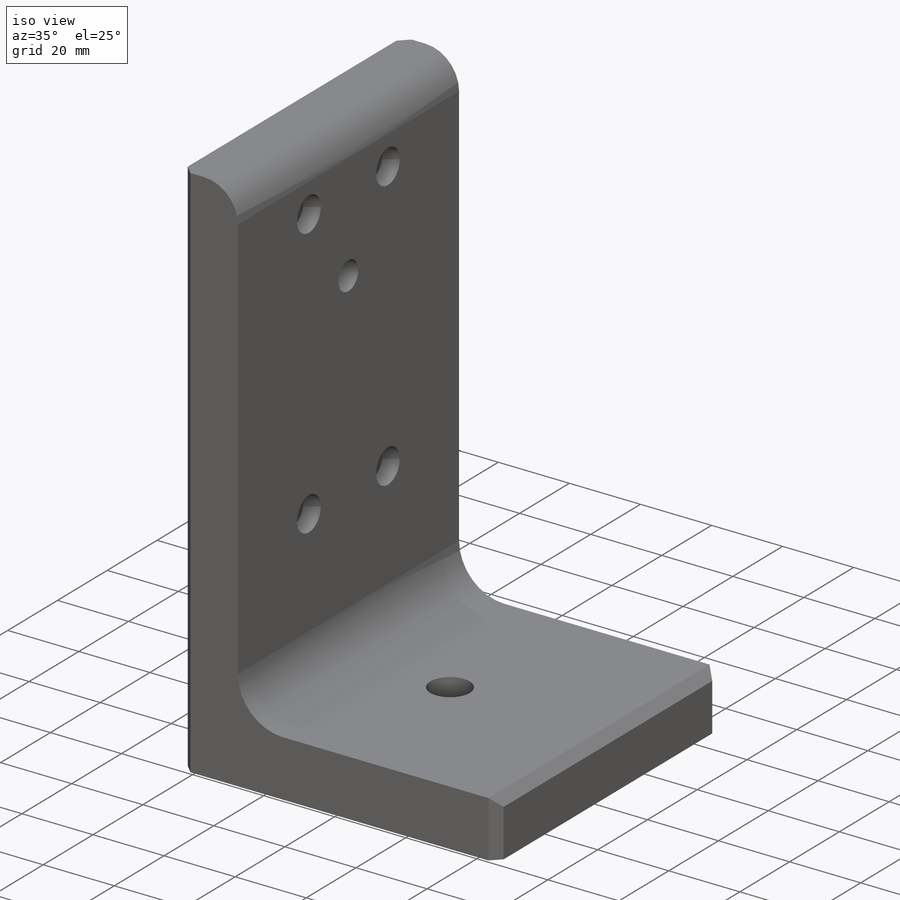
[diagram: iso view]
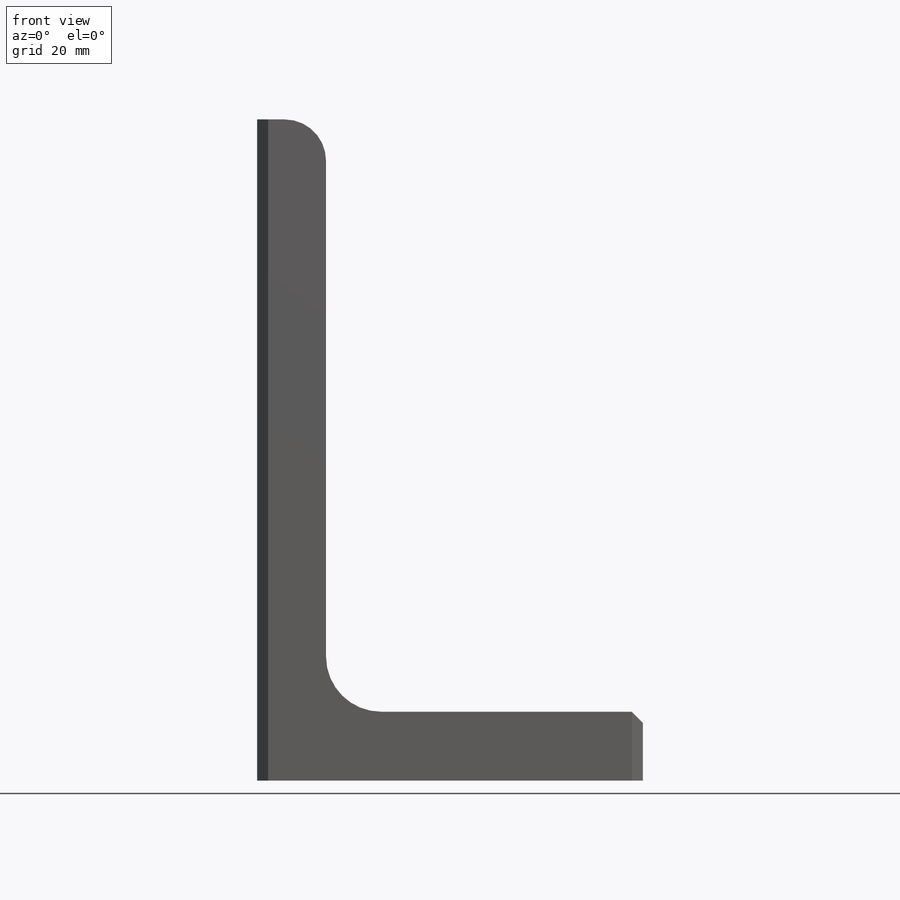
[diagram: front view]
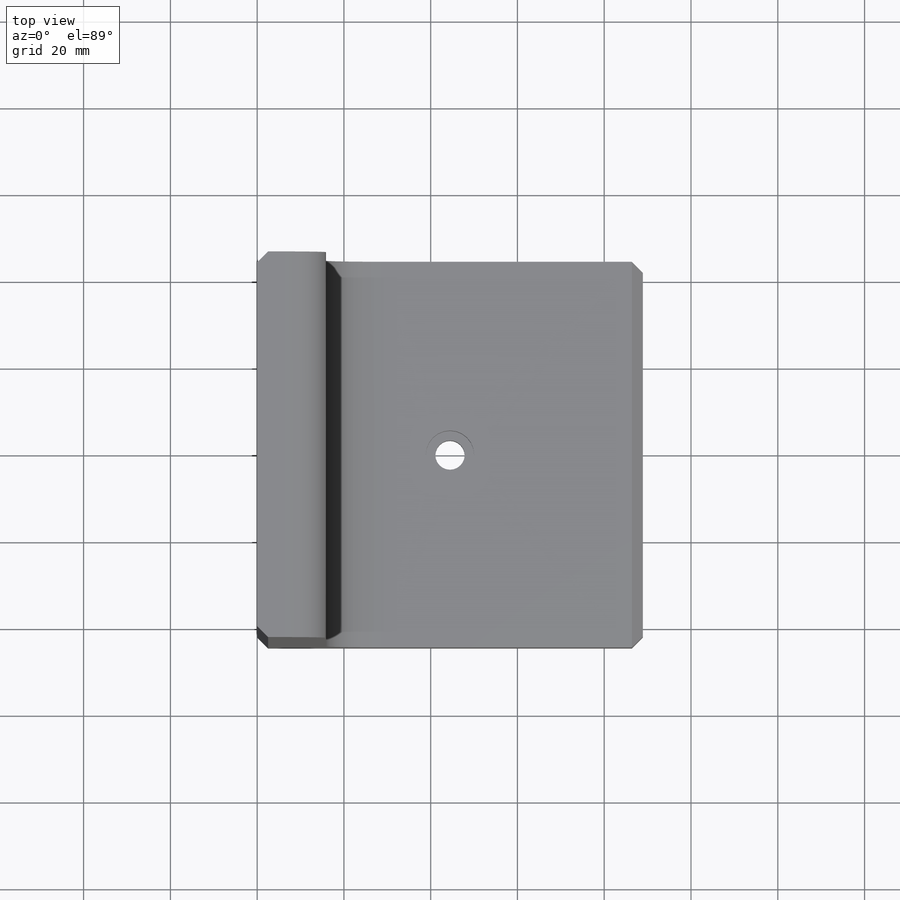
[diagram: top view]
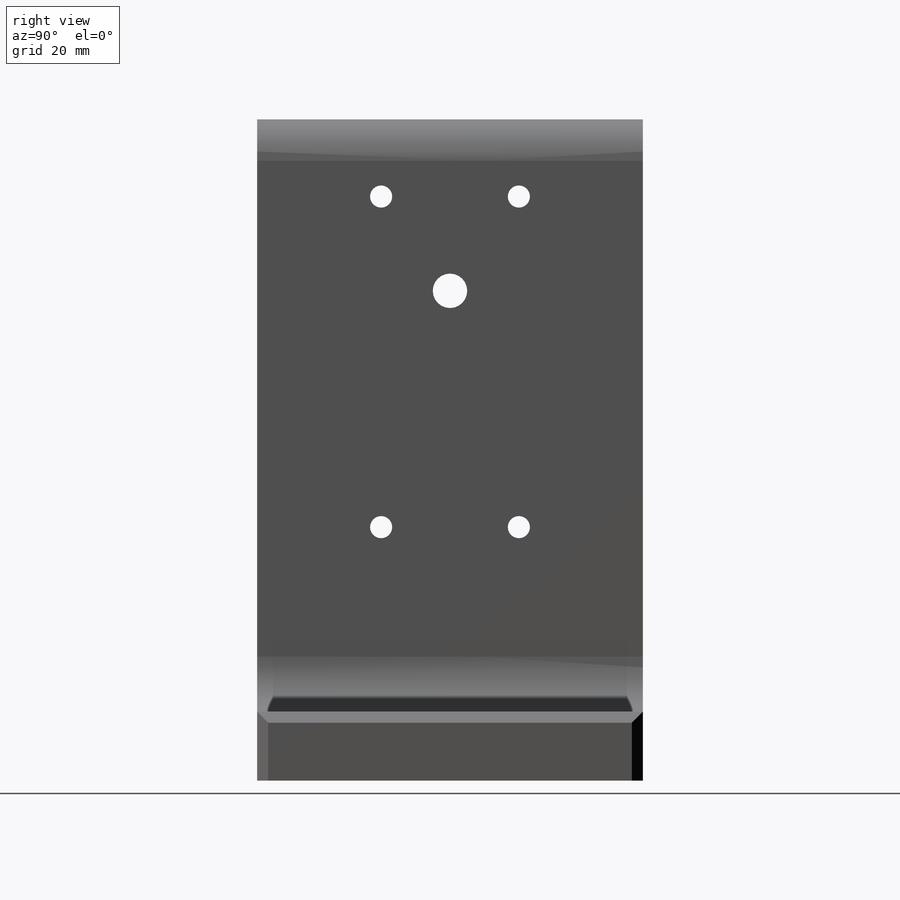
[diagram: right view]
SOLIDWORKS PART (.sldprt)
format: sldprt  version: not decoded by parser v0  size: 611,840 bytes
history: native  units: mm
features: sketch x19, thread x15, hole x8, plane x3, cut_extrude x2, material x1, extrude x1, chamfer x1 + 2 further entries (+11 scaffold rows collapsed; 1 parser-record rows omitted)
feature tree (64):
  scaffold x11  (default folders/planes/origin — collapsed)
  material  "Material <not specified>"
  plane  "Plane1"
  plane  "Plane2"
  plane  "Plane3"
  parser-record x1  (decoder bookkeeping rows leaked as tree rows — omitted from the tree; the rows remain in map.json)
  extrude  "BaseSteelAngle"  [1 undecoded]
  sketch  "Sketch1"  dims[c1.D2=3.175mm c1.Radius_1=12.7mm c1.Radius_2=9.525mm c1.V_leg=50.8mm c1.H_leg=50.8mm c1.Thickness=15.875mm c1.D1=15.875mm c1.D3=46.0375mm c2.V_leg=152.4mm c2.H_leg=152.4mm c2.Flat_wid=~6.35508mm c2.D3=6.35mm c2.D2=~6.35508mm c2.Length=88.9mm]
  "ConfigurationName"  CopiedFlag=1
  "ConfigurationName"  CopiedFlag=0
  hole  "#10-32 Tapped Hole1"  Diameter=4.0386mm Depth=15.875mm
  sketch  "Sketch3"
  sketch  "Sketch2"  dims[hole-wizard template sketch: 60 standard entries collapsed; hole parameters kept: c18.Thru Tap Drill Depth=15.875mm]
  thread  "Hole Thread1"  Diameter=4.826mm  [1 undecoded]
  thread  "Hole Thread2"  Diameter=4.826mm  [1 undecoded]
  thread  "Hole Thread3"  Diameter=4.826mm  [1 undecoded]
  thread  "Hole Thread4"  Diameter=4.826mm  [1 undecoded]
  hole  "#10-32 Tapped Hole2"  [1 undecoded]
  sketch  "Sketch5"  dims[D1=85.725mm]
  thread  "Hole Thread5"  Diameter=12.7mm  [1 undecoded]
  thread  "Hole Thread6"  Diameter=12.7mm  [1 undecoded]
  sketch  "Sketch4"  dims[hole-wizard template sketch: 47 standard entries collapsed; hole parameters kept: c15.Tap Drill Depth=16.6624mm c15.D3=~14.816244mm c15.Drill Angle=118.0deg]
  hole  "CBORE for #10 Socket Head Cap Screw1"  Diameter=5.1054mm Depth=152.4mm
  sketch  "Sketch7"
  sketch  "Sketch6"  dims[hole-wizard template sketch: 42 standard entries collapsed; hole parameters kept: c12.Thru Hole Depth=152.4mm c12.C'Bore Dia.=9.525mm c12.C'Bore Depth=7.366mm]
  hole  "3/8-16 Tapped Hole1"  Diameter=7.9375mm Depth=152.4mm
  sketch  "Sketch9"
  sketch  "Sketch8"  dims[hole-wizard template sketch: 60 standard entries collapsed; hole parameters kept: c18.Thru Tap Drill Depth=152.4mm]
  thread  "Hole Thread7"  Diameter=9.525mm  [1 undecoded]
  hole  "CBORE for #10 Socket Head Cap Screw2"  Diameter=5.1054mm Depth=15.875mm
  sketch  "Sketch11"  dims[D1=17.78mm D2=76.2mm D3=31.75mm]
  sketch  "Sketch10"  dims[hole-wizard template sketch: 42 standard entries collapsed; hole parameters kept: c12.Thru Hole Depth=15.875mm c12.C'Bore Dia.=9.525mm c12.C'Bore Depth=4.826mm]
  sketch  "Sketch16"  dims[c1.D1=~114.30508mm c2.D1=45.0deg]
  cut_extrude  "Cut-Extrude1"  Depth=50.8mm
  hole  "#10-32 Tapped Hole3"  Diameter=4.0386mm Depth=13.6144mm
  sketch  "Sketch13"  dims[D1=19.05mm D2=63.5mm D3=63.5mm]
  sketch  "Sketch12"  dims[hole-wizard template sketch: 47 standard entries collapsed; hole parameters kept: c15.Tap Drill Depth=13.6144mm c15.D3=~14.816244mm c15.Drill Angle=118.0deg]
  thread  "Hole Thread8"  Diameter=9.652mm  [1 undecoded]
  thread  "Hole Thread9"  Diameter=9.652mm  [1 undecoded]
  thread  "Hole Thread10"  Diameter=9.652mm  [1 undecoded]
  thread  "Hole Thread11"  Diameter=9.652mm  [1 undecoded]
  hole  "#10-32 Tapped Hole4"  Diameter=4.0386mm Depth=13.6144mm
  sketch  "Sketch15"  dims[D1=63.5mm D2=12.7mm D3=63.5mm D4=63.5mm]
  sketch  "Sketch14"  dims[hole-wizard template sketch: 47 standard entries collapsed; hole parameters kept: c15.Tap Drill Depth=13.6144mm c15.D3=~14.816244mm c15.Drill Angle=118.0deg]
  thread  "Hole Thread18"  Diameter=9.652mm  [1 undecoded]
  thread  "Hole Thread19"  Diameter=9.652mm  [1 undecoded]
  thread  "Hole Thread20"  Diameter=9.652mm  [1 undecoded]
  thread  "Hole Thread21"  Diameter=9.652mm  [1 undecoded]
  hole  "CBORE for 1/4 Socket Head Cap Screw1"  Diameter=6.7564mm Depth=15.875mm
  sketch  "Sketch18"
  sketch  "Sketch17"  dims[hole-wizard template sketch: 42 standard entries collapsed; hole parameters kept: c12.Thru Hole Depth=15.875mm c12.C'Bore Dia.=11.1125mm c12.C'Bore Depth=6.35mm]
  sketch  "Sketch19"  dims[D1=50.8mm]
  cut_extrude  "Cut-Extrude2"  Depth=0.508mm
  chamfer  "Chamfer1"  Distance=2.54mm Angle=45deg
decode coverage: 40 of 46 modeling features carry decoded parameters; 2 rows unclassified (native names shown)
note: ~ marks probable driven/reference dimensions
note: 17 parameter values undecoded
summary: Diameter pulled from absorbed wizard sketch
note: suppression state not decoded; provenance and decode notes live in map.json
